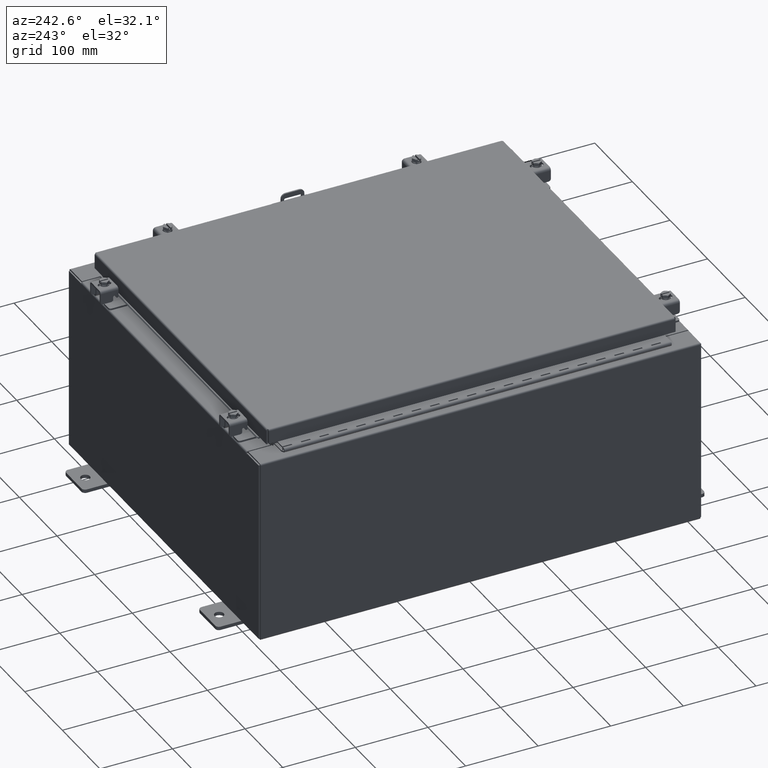
[diagram: clean part render]
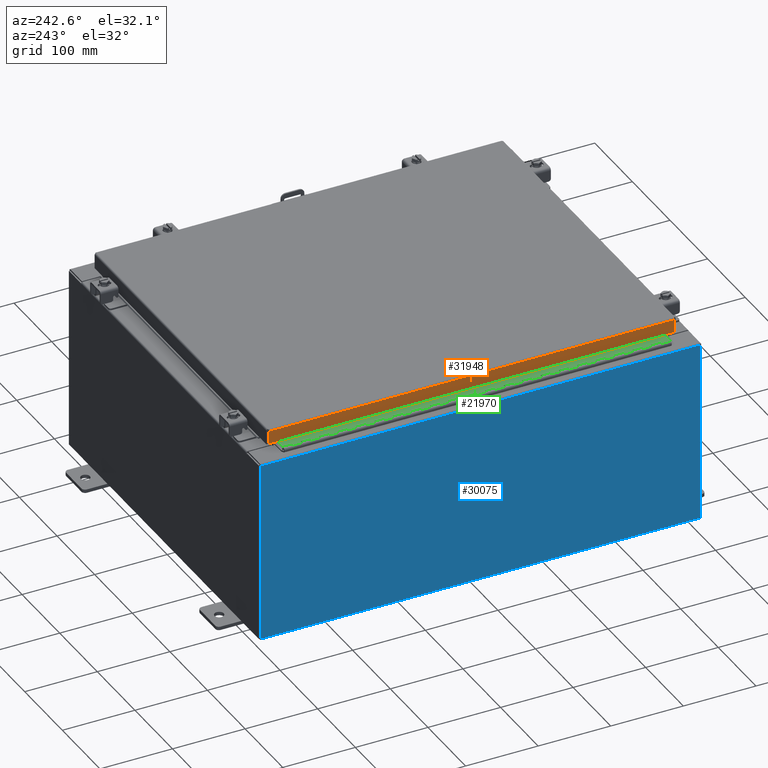
[diagram: same view with three faces highlighted in distinct colors, each labeled with its STEP entity id]
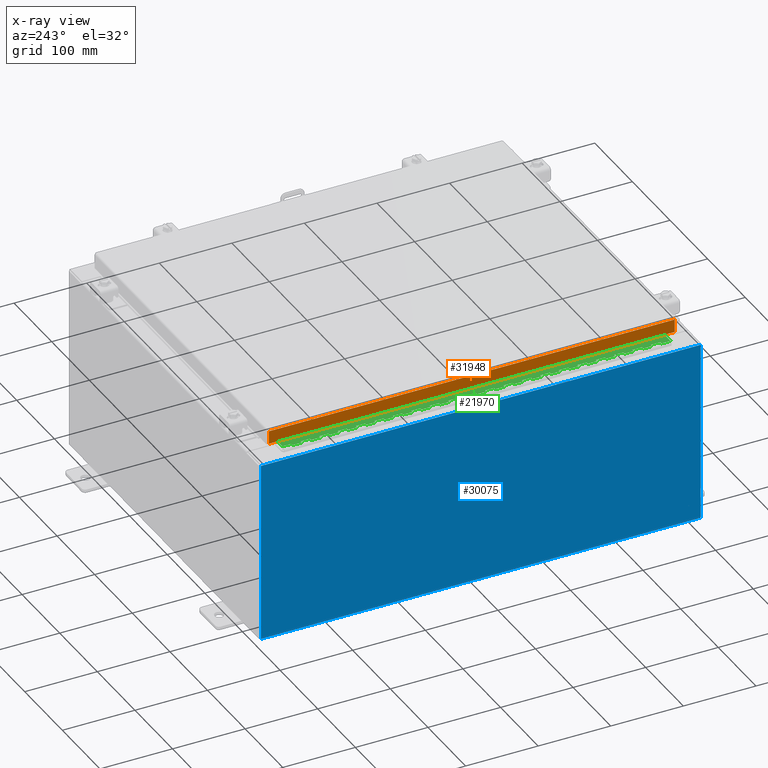
[diagram: x-ray of the same camera — body ghosted, the three highlighted faces saturated]
A machine part, auxiliary view with three faces highlighted in distinct colors.
The next image is the same camera in x-ray (body ghosted, the three faces saturated) — at least one of them is partly hidden behind the body in this view.
Their STEP definitions:

[orange] entity #31948 — the highlighted planar face has unit normal (1, 0, -0).
#1418 = DIRECTION ( 'NONE',  ( 4.379057701015054300E-047, 1.000000000000000000, 1.231227687788112300E-016 ) ) ;
#2693 = ORIENTED_EDGE ( 'NONE', *, *, #24696, .F. ) ;
#2736 = ORIENTED_EDGE ( 'NONE', *, *, #17709, .F. ) ;
#3068 = PLANE ( 'NONE',  #5812 ) ;
#3541 = DIRECTION ( 'NONE',  ( 3.735695558659274900E-031, -1.000000000000000000, -1.101212895818006000E-045 ) ) ;
#3769 = CARTESIAN_POINT ( 'NONE',  ( -9.077999999999999400, -11.00515786437626900, -0.08770000000000007000 ) ) ;
#3939 = CARTESIAN_POINT ( 'NONE',  ( -9.078000000000001200, 11.00515786437627100, -0.7949999999999969300 ) ) ;
#4162 = LINE ( 'NONE', #13985, #11573 ) ;
#4385 = VERTEX_POINT ( 'NONE', #6478 ) ;
#4959 = EDGE_CURVE ( 'NONE', #4385, #28904, #24697, .T. ) ;
#5812 = AXIS2_PLACEMENT_3D ( 'NONE', #7955, #25593, #10576 ) ;
#6478 = CARTESIAN_POINT ( 'NONE',  ( -9.077999999999999400, 11.00515786437626900, -0.08770000000000004200 ) ) ;
#7122 = CARTESIAN_POINT ( 'NONE',  ( -9.078000000000001200, -11.00515786437626700, -0.7949999999999996000 ) ) ;
#7955 = CARTESIAN_POINT ( 'NONE',  ( -9.077999999999999400, -3.391264428150889200E-030, 2.780457718396847000E-014 ) ) ;
#9113 = VECTOR ( 'NONE', #3541, 39.37007874015748100 ) ;
#10418 = CARTESIAN_POINT ( 'NONE',  ( -9.077999999999999400, -11.00515786437627100, -0.07469999999999976700 ) ) ;
#10576 = DIRECTION ( 'NONE',  ( -3.034122441942816500E-015, 0.0000000000000000000, -1.000000000000000000 ) ) ;
#11573 = VECTOR ( 'NONE', #1418, 39.37007874015748100 ) ;
#11752 = LINE ( 'NONE', #10418, #30995 ) ;
#13985 = CARTESIAN_POINT ( 'NONE',  ( -9.078000000000001200, -11.09400000000000100, -0.7949999999999997100 ) ) ;
#15602 = EDGE_CURVE ( 'NONE', #4385, #27986, #16563, .T. ) ;
#16526 = FACE_OUTER_BOUND ( 'NONE', #28698, .T. ) ;
#16563 = LINE ( 'NONE', #23530, #9113 ) ;
#17709 = EDGE_CURVE ( 'NONE', #27986, #30380, #11752, .T. ) ;
#18055 = VECTOR ( 'NONE', #31340, 39.37007874015748100 ) ;
#23530 = CARTESIAN_POINT ( 'NONE',  ( -9.077999999999999400, -11.09400000000000100, -0.08770000000000004200 ) ) ;
#23738 = CARTESIAN_POINT ( 'NONE',  ( -9.077999999999999400, 11.00515786437626700, 1.046531838129534400E-013 ) ) ;
#24696 = EDGE_CURVE ( 'NONE', #30380, #28904, #4162, .T. ) ;
#24697 = LINE ( 'NONE', #23738, #18055 ) ;
#25106 = ORIENTED_EDGE ( 'NONE', *, *, #4959, .T. ) ;
#25446 = DIRECTION ( 'NONE',  ( -3.034122441942816500E-015, 6.982962677686265900E-015, -1.000000000000000000 ) ) ;
#25593 = DIRECTION ( 'NONE',  ( 1.000000000000000000, 3.735695558659274400E-031, -3.034122441942816500E-015 ) ) ;
#27986 = VERTEX_POINT ( 'NONE', #3769 ) ;
#28698 = EDGE_LOOP ( 'NONE', ( #31347, #25106, #2693, #2736 ) ) ;
#28904 = VERTEX_POINT ( 'NONE', #3939 ) ;
#30380 = VERTEX_POINT ( 'NONE', #7122 ) ;
#30995 = VECTOR ( 'NONE', #25446, 39.37007874015748100 ) ;
#31340 = DIRECTION ( 'NONE',  ( -3.034122441942816500E-015, 6.982962677686265900E-015, -1.000000000000000000 ) ) ;
#31347 = ORIENTED_EDGE ( 'NONE', *, *, #15602, .F. ) ;
#31948 = ADVANCED_FACE ( 'NONE', ( #16526 ), #3068, .F. ) ;

[blue] entity #30075 — the highlighted planar face has unit normal (1, 0, 0).
#1237 = ORIENTED_EDGE ( 'NONE', *, *, #17410, .T. ) ;
#1812 = CARTESIAN_POINT ( 'NONE',  ( -10.00000000000000000, 11.92530000000000000, -3.549164226462045900E-014 ) ) ;
#2259 = VECTOR ( 'NONE', #9923, 39.37007874015748100 ) ;
#2975 = LINE ( 'NONE', #11229, #15464 ) ;
#3542 = DIRECTION ( 'NONE',  ( 3.523082860860887800E-015, 0.0000000000000000000, -1.000000000000000000 ) ) ;
#5271 = ORIENTED_EDGE ( 'NONE', *, *, #31865, .T. ) ;
#6415 = CARTESIAN_POINT ( 'NONE',  ( -10.00000000000003600, 11.92530000000000000, 9.837599999999998300 ) ) ;
#7066 = EDGE_CURVE ( 'NONE', #8749, #16160, #8102, .T. ) ;
#7249 = ORIENTED_EDGE ( 'NONE', *, *, #25765, .T. ) ;
#8102 = LINE ( 'NONE', #24953, #2259 ) ;
#8473 = AXIS2_PLACEMENT_3D ( 'NONE', #15978, #18513, #3542 ) ;
#8749 = VERTEX_POINT ( 'NONE', #17218 ) ;
#8815 = CARTESIAN_POINT ( 'NONE',  ( -10.00000000000000000, 11.92530000000000000, 0.01299999999999984300 ) ) ;
#9923 = DIRECTION ( 'NONE',  ( -0.0000000000000000000, 1.000000000000000000, -0.0000000000000000000 ) ) ;
#10156 = CARTESIAN_POINT ( 'NONE',  ( -10.00000000000003600, -11.92530000000000000, 9.837599999999998300 ) ) ;
#11119 = VERTEX_POINT ( 'NONE', #21975 ) ;
#11229 = CARTESIAN_POINT ( 'NONE',  ( -10.00000000000000000, -11.92530000000000000, -3.549164226462045900E-014 ) ) ;
#11669 = DIRECTION ( 'NONE',  ( -3.523082860860888200E-015, 0.0000000000000000000, 1.000000000000000000 ) ) ;
#11979 = ORIENTED_EDGE ( 'NONE', *, *, #7066, .F. ) ;
#12668 = DIRECTION ( 'NONE',  ( 0.0000000000000000000, 1.000000000000000000, 0.0000000000000000000 ) ) ;
#12933 = VECTOR ( 'NONE', #24248, 39.37007874015748100 ) ;
#13791 = LINE ( 'NONE', #10156, #25568 ) ;
#14018 = EDGE_LOOP ( 'NONE', ( #5271, #1237, #11979, #7249 ) ) ;
#15464 = VECTOR ( 'NONE', #11669, 39.37007874015748100 ) ;
#15978 = CARTESIAN_POINT ( 'NONE',  ( -10.00000000000000000, 0.0000000000000000000, -3.549164226462045900E-014 ) ) ;
#16160 = VERTEX_POINT ( 'NONE', #8815 ) ;
#17218 = CARTESIAN_POINT ( 'NONE',  ( -10.00000000000000000, -11.92529999999999800, 0.01299999999999984700 ) ) ;
#17410 = EDGE_CURVE ( 'NONE', #21114, #16160, #26271, .T. ) ;
#18513 = DIRECTION ( 'NONE',  ( 1.000000000000000000, 0.0000000000000000000, 3.523082860860887800E-015 ) ) ;
#21114 = VERTEX_POINT ( 'NONE', #6415 ) ;
#21975 = CARTESIAN_POINT ( 'NONE',  ( -10.00000000000003600, -11.92529999999999500, 9.837599999999998300 ) ) ;
#22537 = FACE_OUTER_BOUND ( 'NONE', #14018, .T. ) ;
#24248 = DIRECTION ( 'NONE',  ( 3.523082860860888200E-015, 0.0000000000000000000, -1.000000000000000000 ) ) ;
#24953 = CARTESIAN_POINT ( 'NONE',  ( -10.00000000000000000, 11.92530000000000000, 0.01299999999999984700 ) ) ;
#25568 = VECTOR ( 'NONE', #12668, 39.37007874015748100 ) ;
#25765 = EDGE_CURVE ( 'NONE', #8749, #11119, #2975, .T. ) ;
#26271 = LINE ( 'NONE', #1812, #12933 ) ;
#30075 = ADVANCED_FACE ( 'NONE', ( #22537 ), #31034, .F. ) ;
#31034 = PLANE ( 'NONE',  #8473 ) ;
#31865 = EDGE_CURVE ( 'NONE', #11119, #21114, #13791, .T. ) ;

[green] entity #21970 — the highlighted planar face has unit normal (-0, -0, 1).
#18 = VECTOR ( 'NONE', #12696, 39.37007874015748100 ) ;
#42 = CARTESIAN_POINT ( 'NONE',  ( -0.6869999999999973900, 0.8004999999999995500, -10.00000000000000000 ) ) ;
#98 = LINE ( 'NONE', #28901, #1669 ) ;
#252 = VERTEX_POINT ( 'NONE', #6215 ) ;
#268 = VERTEX_POINT ( 'NONE', #1294 ) ;
#328 = VECTOR ( 'NONE', #31581, 39.37007874015748100 ) ;
#331 = CARTESIAN_POINT ( 'NONE',  ( -0.6869999999999982800, 0.5504999999999997700, -2.500000000000000000 ) ) ;
#345 = VECTOR ( 'NONE', #1203, 39.37007874015748100 ) ;
#383 = EDGE_CURVE ( 'NONE', #5269, #10296, #10696, .T. ) ;
#401 = CARTESIAN_POINT ( 'NONE',  ( -0.6869999999999982800, 0.5504999999999997700, -17.50000000000000000 ) ) ;
#447 = CARTESIAN_POINT ( 'NONE',  ( -0.6869999999999982800, 0.5504999999999997700, -17.00000000000000000 ) ) ;
#464 = LINE ( 'NONE', #9889, #12200 ) ;
#521 = EDGE_CURVE ( 'NONE', #10962, #14080, #19766, .T. ) ;
#560 = VECTOR ( 'NONE', #23667, 39.37007874015748100 ) ;
#567 = EDGE_CURVE ( 'NONE', #32378, #10759, #31543, .T. ) ;
#584 = VERTEX_POINT ( 'NONE', #14953 ) ;
#721 = EDGE_CURVE ( 'NONE', #13237, #15537, #21677, .T. ) ;
#784 = CARTESIAN_POINT ( 'NONE',  ( -0.6869999999999978300, 0.6754999999999996600, -10.00000000000000000 ) ) ;
#814 = DIRECTION ( 'NONE',  ( 0.0000000000000000000, -0.0000000000000000000, -1.000000000000000000 ) ) ;
#895 = LINE ( 'NONE', #32430, #6776 ) ;
#1031 = VERTEX_POINT ( 'NONE', #16798 ) ;
#1037 = VECTOR ( 'NONE', #12600, 39.37007874015748100 ) ;
#1053 = EDGE_CURVE ( 'NONE', #29542, #16399, #24824, .T. ) ;
#1081 = LINE ( 'NONE', #24680, #13599 ) ;
#1138 = DIRECTION ( 'NONE',  ( 0.0000000000000000000, 0.0000000000000000000, 1.000000000000000000 ) ) ;
#1157 = VERTEX_POINT ( 'NONE', #17341 ) ;
#1203 = DIRECTION ( 'NONE',  ( -3.389037039080723100E-015, -1.000000000000000000, 0.0000000000000000000 ) ) ;
#1235 = CARTESIAN_POINT ( 'NONE',  ( -0.6869999999999973900, 0.8004999999999995500, -17.99999999999999600 ) ) ;
#1292 = LINE ( 'NONE', #24957, #20471 ) ;
#1294 = CARTESIAN_POINT ( 'NONE',  ( -0.6869999999999998300, 0.07549999999999991400, 0.0000000000000000000 ) ) ;
#1312 = CARTESIAN_POINT ( 'NONE',  ( -0.6869999999999982800, 0.5504999999999997700, -5.000000000000000000 ) ) ;
#1320 = VECTOR ( 'NONE', #20789, 39.37007874015748100 ) ;
#1321 = LINE ( 'NONE', #26386, #21258 ) ;
#1379 = CARTESIAN_POINT ( 'NONE',  ( -0.6869999999999982800, 0.5504999999999997700, -19.50000000000000000 ) ) ;
#1482 = DIRECTION ( 'NONE',  ( 0.0000000000000000000, -0.0000000000000000000, -1.000000000000000000 ) ) ;
#1527 = VECTOR ( 'NONE', #32099, 39.37007874015748100 ) ;
#1564 = CARTESIAN_POINT ( 'NONE',  ( -0.6869999999999973900, 0.8004999999999995500, -18.50000000000000000 ) ) ;
#1669 = VECTOR ( 'NONE', #23827, 39.37007874015748100 ) ;
#1730 = CARTESIAN_POINT ( 'NONE',  ( -0.6869999999999982800, 0.5504999999999997700, -12.49999999999999800 ) ) ;
#1738 = ORIENTED_EDGE ( 'NONE', *, *, #1053, .F. ) ;
#1793 = ORIENTED_EDGE ( 'NONE', *, *, #32393, .F. ) ;
#1813 = VECTOR ( 'NONE', #23389, 39.37007874015748100 ) ;
#1822 = EDGE_CURVE ( 'NONE', #20582, #4193, #13516, .T. ) ;
#1824 = ORIENTED_EDGE ( 'NONE', *, *, #521, .T. ) ;
#1850 = DIRECTION ( 'NONE',  ( -3.389037039080723100E-015, -1.000000000000000000, 0.0000000000000000000 ) ) ;
#2050 = CARTESIAN_POINT ( 'NONE',  ( -0.6869999999999982800, 0.5504999999999997700, -7.499999999999999100 ) ) ;
#2096 = CARTESIAN_POINT ( 'NONE',  ( -0.6869999999999982800, 0.5504999999999997700, -2.500000000000000000 ) ) ;
#2130 = EDGE_CURVE ( 'NONE', #268, #15466, #12325, .T. ) ;
#2183 = CARTESIAN_POINT ( 'NONE',  ( -0.6869999999999982800, 0.5504999999999997700, -6.499999999999999100 ) ) ;
#2269 = VERTEX_POINT ( 'NONE', #19561 ) ;
#2321 = LINE ( 'NONE', #4826, #8159 ) ;
#2392 = VERTEX_POINT ( 'NONE', #23047 ) ;
#2465 = VECTOR ( 'NONE', #6409, 39.37007874015748100 ) ;
#2469 = VECTOR ( 'NONE', #12982, 39.37007874015748100 ) ;
#2485 = CARTESIAN_POINT ( 'NONE',  ( -0.6869999999999978300, 0.6754999999999996600, -12.99999999999999800 ) ) ;
#2643 = LINE ( 'NONE', #27617, #1037 ) ;
#2648 = LINE ( 'NONE', #3234, #27706 ) ;
#2844 = CARTESIAN_POINT ( 'NONE',  ( -0.6869999999999978300, 0.6754999999999996600, -21.00000000000000000 ) ) ;
#2860 = DIRECTION ( 'NONE',  ( -3.389037039080723100E-015, -1.000000000000000000, 0.0000000000000000000 ) ) ;
#2986 = EDGE_CURVE ( 'NONE', #4193, #14555, #7964, .T. ) ;
#3083 = CARTESIAN_POINT ( 'NONE',  ( -0.6869999999999973900, 0.8004999999999995500, -16.50000000000000000 ) ) ;
#3152 = ORIENTED_EDGE ( 'NONE', *, *, #6707, .F. ) ;
#3156 = FACE_OUTER_BOUND ( 'NONE', #4631, .T. ) ;
#3234 = CARTESIAN_POINT ( 'NONE',  ( -0.6869999999999978300, 0.6754999999999996600, -21.00000000000000000 ) ) ;
#3241 = DIRECTION ( 'NONE',  ( 3.389037039080723100E-015, 1.000000000000000000, -0.0000000000000000000 ) ) ;
#3254 = CARTESIAN_POINT ( 'NONE',  ( -0.6869999999999973900, 0.8004999999999995500, -6.000000000000000900 ) ) ;
#3312 = CARTESIAN_POINT ( 'NONE',  ( -0.6869999999999973900, 0.8004999999999995500, -11.99999999999999800 ) ) ;
#3348 = VECTOR ( 'NONE', #12905, 39.37007874015748100 ) ;
#3375 = VECTOR ( 'NONE', #7550, 39.37007874015748100 ) ;
#3403 = CARTESIAN_POINT ( 'NONE',  ( -0.6869999999999973900, 0.8004999999999995500, -2.000000000000000000 ) ) ;
#3488 = VECTOR ( 'NONE', #16194, 39.37007874015748100 ) ;
#3655 = EDGE_CURVE ( 'NONE', #16208, #21382, #9084, .T. ) ;
#3707 = EDGE_CURVE ( 'NONE', #23198, #3985, #20824, .T. ) ;
#3749 = EDGE_CURVE ( 'NONE', #8103, #14080, #21606, .T. ) ;
#3794 = VECTOR ( 'NONE', #4635, 39.37007874015748100 ) ;
#3825 = LINE ( 'NONE', #13143, #16318 ) ;
#3901 = EDGE_CURVE ( 'NONE', #13753, #20023, #22797, .T. ) ;
#3932 = CARTESIAN_POINT ( 'NONE',  ( -0.6869999999999978300, 0.6754999999999996600, -21.00000000000000000 ) ) ;
#3971 = VERTEX_POINT ( 'NONE', #19885 ) ;
#3985 = VERTEX_POINT ( 'NONE', #29883 ) ;
#3996 = EDGE_CURVE ( 'NONE', #24018, #19023, #464, .T. ) ;
#4003 = CARTESIAN_POINT ( 'NONE',  ( -0.6869999999999982800, 0.5504999999999997700, -12.99999999999999800 ) ) ;
#4032 = DIRECTION ( 'NONE',  ( 3.389037039080723100E-015, 1.000000000000000000, -0.0000000000000000000 ) ) ;
#4078 = VECTOR ( 'NONE', #9143, 39.37007874015748100 ) ;
#4136 = LINE ( 'NONE', #7503, #30791 ) ;
#4142 = CARTESIAN_POINT ( 'NONE',  ( -0.6869999999999978300, 0.6754999999999996600, -12.49999999999999800 ) ) ;
#4160 = ORIENTED_EDGE ( 'NONE', *, *, #22331, .F. ) ;
#4173 = DIRECTION ( 'NONE',  ( 0.0000000000000000000, 0.0000000000000000000, 1.000000000000000000 ) ) ;
#4193 = VERTEX_POINT ( 'NONE', #20722 ) ;
#4199 = ORIENTED_EDGE ( 'NONE', *, *, #11536, .F. ) ;
#4260 = CARTESIAN_POINT ( 'NONE',  ( -0.6869999999999973900, 0.8004999999999995500, -13.50000000000000000 ) ) ;
#4293 = EDGE_CURVE ( 'NONE', #4579, #20143, #11807, .T. ) ;
#4346 = EDGE_CURVE ( 'NONE', #5031, #10296, #16089, .T. ) ;
#4369 = VECTOR ( 'NONE', #25604, 39.37007874015748100 ) ;
#4394 = CARTESIAN_POINT ( 'NONE',  ( -0.6869999999999973900, 0.8004999999999995500, -20.00000000000000000 ) ) ;
#4447 = DIRECTION ( 'NONE',  ( 3.389037039080723100E-015, 1.000000000000000000, -0.0000000000000000000 ) ) ;
#4456 = DIRECTION ( 'NONE',  ( 3.389037039080723100E-015, 1.000000000000000000, -0.0000000000000000000 ) ) ;
#4477 = CARTESIAN_POINT ( 'NONE',  ( -0.6869999999999978300, 0.6754999999999996600, -11.99999999999999800 ) ) ;
#4499 = VECTOR ( 'NONE', #31364, 39.37007874015748100 ) ;
#4579 = VERTEX_POINT ( 'NONE', #22232 ) ;
#4631 = EDGE_LOOP ( 'NONE', ( #9481, #27606, #12802, #19138, #15125, #29268, #18420, #15177, #18144, #12545, #30759, #24898, #22175, #11427, #29151, #6518, #6991, #4199, #23728, #6245, #16554, #31081, #7069, #29811, #18612, #15890, #25146, #19015, #1824, #13212, #1793, #30498, #20713, #1738, #6350, #26626, #25471, #32334, #30444, #32218, #30335, #21347, #7741, #11569, #30867, #26975, #15213, #25934, #21097, #25988, #6041, #4160, #6693, #30035, #15859, #27309, #24465, #24544, #14822, #31339, #26309, #8170, #22065, #26403, #11163, #25497, #30002, #23687, #15134, #5254, #4962, #28536, #19024, #7500, #7786, #3152, #26765, #31560, #6670, #22525, #17438, #15501, #5614, #26083, #14790, #12765 ) ) ;
#4635 = DIRECTION ( 'NONE',  ( 0.0000000000000000000, -0.0000000000000000000, -1.000000000000000000 ) ) ;
#4785 = DIRECTION ( 'NONE',  ( 0.0000000000000000000, 0.0000000000000000000, 1.000000000000000000 ) ) ;
#4815 = DIRECTION ( 'NONE',  ( 0.0000000000000000000, 0.0000000000000000000, 1.000000000000000000 ) ) ;
#4826 = CARTESIAN_POINT ( 'NONE',  ( -0.6869999999999973900, 0.8004999999999995500, -3.500000000000000000 ) ) ;
#4873 = EDGE_CURVE ( 'NONE', #16208, #21356, #27044, .T. ) ;
#4900 = DIRECTION ( 'NONE',  ( -3.389037039080723100E-015, -1.000000000000000000, 0.0000000000000000000 ) ) ;
#4918 = VECTOR ( 'NONE', #26575, 39.37007874015748100 ) ;
#4962 = ORIENTED_EDGE ( 'NONE', *, *, #21642, .F. ) ;
#4968 = VERTEX_POINT ( 'NONE', #1312 ) ;
#5022 = LINE ( 'NONE', #24783, #28503 ) ;
#5031 = VERTEX_POINT ( 'NONE', #16500 ) ;
#5057 = VERTEX_POINT ( 'NONE', #21527 ) ;
#5254 = ORIENTED_EDGE ( 'NONE', *, *, #19749, .F. ) ;
#5268 = LINE ( 'NONE', #16301, #4499 ) ;
#5269 = VERTEX_POINT ( 'NONE', #5487 ) ;
#5340 = CARTESIAN_POINT ( 'NONE',  ( -0.6869999999999978300, 0.6754999999999996600, -17.00000000000000000 ) ) ;
#5415 = CARTESIAN_POINT ( 'NONE',  ( -0.6869999999999978300, 0.6754999999999996600, -21.00000000000000000 ) ) ;
#5434 = VECTOR ( 'NONE', #25918, 39.37007874015748100 ) ;
#5487 = CARTESIAN_POINT ( 'NONE',  ( -0.6869999999999978300, 0.6754999999999996600, -11.50000000000000000 ) ) ;
#5504 = VECTOR ( 'NONE', #17579, 39.37007874015748100 ) ;
#5548 = LINE ( 'NONE', #17269, #31427 ) ;
#5614 = ORIENTED_EDGE ( 'NONE', *, *, #13165, .F. ) ;
#5631 = VECTOR ( 'NONE', #14451, 39.37007874015748100 ) ;
#5644 = LINE ( 'NONE', #4260, #30749 ) ;
#5840 = VECTOR ( 'NONE', #2860, 39.37007874015748100 ) ;
#5863 = DIRECTION ( 'NONE',  ( 0.0000000000000000000, -0.0000000000000000000, -1.000000000000000000 ) ) ;
#5883 = LINE ( 'NONE', #12722, #25081 ) ;
#6041 = ORIENTED_EDGE ( 'NONE', *, *, #16621, .F. ) ;
#6205 = VECTOR ( 'NONE', #28790, 39.37007874015748100 ) ;
#6215 = CARTESIAN_POINT ( 'NONE',  ( -0.6869999999999982800, 0.5504999999999997700, -4.500000000000000000 ) ) ;
#6221 = LINE ( 'NONE', #13423, #32121 ) ;
#6234 = EDGE_CURVE ( 'NONE', #24683, #26417, #15976, .T. ) ;
#6245 = ORIENTED_EDGE ( 'NONE', *, *, #28679, .F. ) ;
#6323 = EDGE_CURVE ( 'NONE', #23422, #11334, #26956, .T. ) ;
#6350 = ORIENTED_EDGE ( 'NONE', *, *, #16206, .F. ) ;
#6409 = DIRECTION ( 'NONE',  ( 0.0000000000000000000, 0.0000000000000000000, 1.000000000000000000 ) ) ;
#6518 = ORIENTED_EDGE ( 'NONE', *, *, #3655, .F. ) ;
#6670 = ORIENTED_EDGE ( 'NONE', *, *, #25950, .F. ) ;
#6673 = CARTESIAN_POINT ( 'NONE',  ( -0.6869999999999982800, 0.5504999999999997700, -7.000000000000000000 ) ) ;
#6693 = ORIENTED_EDGE ( 'NONE', *, *, #23715, .T. ) ;
#6707 = EDGE_CURVE ( 'NONE', #13978, #22633, #30903, .T. ) ;
#6739 = DIRECTION ( 'NONE',  ( -3.389037039080723100E-015, -1.000000000000000000, 0.0000000000000000000 ) ) ;
#6752 = CARTESIAN_POINT ( 'NONE',  ( -0.6869999999999978300, 0.6754999999999996600, -17.50000000000000000 ) ) ;
#6776 = VECTOR ( 'NONE', #24846, 39.37007874015748100 ) ;
#6895 = CARTESIAN_POINT ( 'NONE',  ( -0.6869999999999978300, 0.6754999999999996600, -0.5000000000000000000 ) ) ;
#6929 = CARTESIAN_POINT ( 'NONE',  ( -0.6869999999999982800, 0.5504999999999997700, -4.000000000000000000 ) ) ;
#6977 = CARTESIAN_POINT ( 'NONE',  ( -0.6869999999999982800, 0.5504999999999997700, -5.500000000000000000 ) ) ;
#6991 = ORIENTED_EDGE ( 'NONE', *, *, #4873, .T. ) ;
#7069 = ORIENTED_EDGE ( 'NONE', *, *, #25373, .F. ) ;
#7117 = DIRECTION ( 'NONE',  ( 0.0000000000000000000, 0.0000000000000000000, 1.000000000000000000 ) ) ;
#7182 = CARTESIAN_POINT ( 'NONE',  ( -0.6869999999999982800, 0.5504999999999997700, -13.50000000000000000 ) ) ;
#7378 = VECTOR ( 'NONE', #21775, 39.37007874015748100 ) ;
#7382 = CARTESIAN_POINT ( 'NONE',  ( -0.6869999999999982800, 0.5504999999999997700, -1.499999999999999800 ) ) ;
#7464 = LINE ( 'NONE', #17655, #18 ) ;
#7476 = CARTESIAN_POINT ( 'NONE',  ( -0.6869999999999978300, 0.6754999999999996600, -13.50000000000000000 ) ) ;
#7500 = ORIENTED_EDGE ( 'NONE', *, *, #23770, .F. ) ;
#7503 = CARTESIAN_POINT ( 'NONE',  ( -0.6869999999999982800, 0.5504999999999997700, -1.499999999999999800 ) ) ;
#7550 = DIRECTION ( 'NONE',  ( 0.0000000000000000000, -0.0000000000000000000, -1.000000000000000000 ) ) ;
#7589 = CARTESIAN_POINT ( 'NONE',  ( -0.6869999999999978300, 0.6754999999999996600, -16.00000000000000000 ) ) ;
#7634 = CARTESIAN_POINT ( 'NONE',  ( -0.6869999999999982800, 0.5504999999999997700, -19.00000000000000000 ) ) ;
#7741 = ORIENTED_EDGE ( 'NONE', *, *, #28729, .F. ) ;
#7786 = ORIENTED_EDGE ( 'NONE', *, *, #20654, .F. ) ;
#7936 = CARTESIAN_POINT ( 'NONE',  ( -0.6869999999999978300, 0.6754999999999996600, -2.500000000000000000 ) ) ;
#7939 = EDGE_CURVE ( 'NONE', #28571, #16582, #2648, .T. ) ;
#7964 = LINE ( 'NONE', #3312, #1320 ) ;
#8088 = VERTEX_POINT ( 'NONE', #31265 ) ;
#8103 = VERTEX_POINT ( 'NONE', #18857 ) ;
#8139 = LINE ( 'NONE', #19283, #7378 ) ;
#8140 = EDGE_CURVE ( 'NONE', #13978, #23674, #10198, .T. ) ;
#8159 = VECTOR ( 'NONE', #9725, 39.37007874015748100 ) ;
#8170 = ORIENTED_EDGE ( 'NONE', *, *, #21499, .F. ) ;
#8238 = VECTOR ( 'NONE', #7117, 39.37007874015748100 ) ;
#8245 = DIRECTION ( 'NONE',  ( 3.389037039080723100E-015, 1.000000000000000000, -0.0000000000000000000 ) ) ;
#8251 = DIRECTION ( 'NONE',  ( 0.0000000000000000000, 0.0000000000000000000, 1.000000000000000000 ) ) ;
#8296 = LINE ( 'NONE', #30769, #9087 ) ;
#8346 = CARTESIAN_POINT ( 'NONE',  ( -0.6869999999999982800, 0.5504999999999997700, -8.500000000000000000 ) ) ;
#8355 = CARTESIAN_POINT ( 'NONE',  ( -0.6869999999999978300, 0.6754999999999996600, -18.50000000000000000 ) ) ;
#8468 = EDGE_CURVE ( 'NONE', #11673, #30115, #7464, .T. ) ;
#8847 = EDGE_CURVE ( 'NONE', #24144, #20143, #28989, .T. ) ;
#9084 = LINE ( 'NONE', #31195, #28306 ) ;
#9087 = VECTOR ( 'NONE', #15712, 39.37007874015748100 ) ;
#9143 = DIRECTION ( 'NONE',  ( 0.0000000000000000000, 0.0000000000000000000, 1.000000000000000000 ) ) ;
#9175 = EDGE_CURVE ( 'NONE', #31030, #20153, #20332, .T. ) ;
#9202 = LINE ( 'NONE', #19152, #22533 ) ;
#9225 = LINE ( 'NONE', #25830, #1813 ) ;
#9282 = EDGE_CURVE ( 'NONE', #19305, #16582, #24644, .T. ) ;
#9324 = LINE ( 'NONE', #30883, #12061 ) ;
#9328 = EDGE_CURVE ( 'NONE', #30944, #13224, #23053, .T. ) ;
#9336 = CARTESIAN_POINT ( 'NONE',  ( -0.6869999999999973900, 0.8004999999999995500, -12.99999999999999800 ) ) ;
#9384 = EDGE_CURVE ( 'NONE', #23198, #2392, #2321, .T. ) ;
#9481 = ORIENTED_EDGE ( 'NONE', *, *, #18393, .F. ) ;
#9687 = CARTESIAN_POINT ( 'NONE',  ( -0.6869999999999982800, 0.5504999999999997700, -14.49999999999999800 ) ) ;
#9714 = CARTESIAN_POINT ( 'NONE',  ( -0.6869999999999978300, 0.6754999999999996600, -21.00000000000000000 ) ) ;
#9725 = DIRECTION ( 'NONE',  ( -3.389037039080723100E-015, -1.000000000000000000, 0.0000000000000000000 ) ) ;
#9741 = EDGE_CURVE ( 'NONE', #28571, #12832, #25405, .T. ) ;
#9889 = CARTESIAN_POINT ( 'NONE',  ( -0.6869999999999973900, 0.8004999999999995500, -19.50000000000000000 ) ) ;
#9981 = DIRECTION ( 'NONE',  ( 0.0000000000000000000, -0.0000000000000000000, -1.000000000000000000 ) ) ;
#9995 = CARTESIAN_POINT ( 'NONE',  ( -0.6869999999999982800, 0.5504999999999997700, -20.00000000000000000 ) ) ;
#10084 = CARTESIAN_POINT ( 'NONE',  ( -0.6869999999999973900, 0.8004999999999995500, -16.00000000000000000 ) ) ;
#10094 = VECTOR ( 'NONE', #17548, 39.37007874015748100 ) ;
#10198 = LINE ( 'NONE', #21457, #23511 ) ;
#10202 = DIRECTION ( 'NONE',  ( 3.369016658928398200E-015, 1.000000000000000000, 0.0000000000000000000 ) ) ;
#10259 = CARTESIAN_POINT ( 'NONE',  ( -0.6869999999999978300, 0.6754999999999996600, -8.000000000000000000 ) ) ;
#10275 = EDGE_CURVE ( 'NONE', #27837, #17014, #3825, .T. ) ;
#10296 = VERTEX_POINT ( 'NONE', #18434 ) ;
#10374 = CARTESIAN_POINT ( 'NONE',  ( -0.6869999999999973900, 0.8004999999999995500, -17.00000000000000000 ) ) ;
#10394 = VERTEX_POINT ( 'NONE', #13789 ) ;
#10422 = LINE ( 'NONE', #2096, #3794 ) ;
#10453 = LINE ( 'NONE', #5415, #22204 ) ;
#10544 = VECTOR ( 'NONE', #30179, 39.37007874015748100 ) ;
#10557 = VECTOR ( 'NONE', #9981, 39.37007874015748100 ) ;
#10599 = VERTEX_POINT ( 'NONE', #7476 ) ;
#10627 = VECTOR ( 'NONE', #17262, 39.37007874015748100 ) ;
#10632 = EDGE_CURVE ( 'NONE', #12832, #17425, #2643, .T. ) ;
#10696 = LINE ( 'NONE', #24279, #4078 ) ;
#10700 = CARTESIAN_POINT ( 'NONE',  ( -0.6869999999999973900, 0.8004999999999995500, -9.500000000000000000 ) ) ;
#10745 = DIRECTION ( 'NONE',  ( -3.389037039080723100E-015, -1.000000000000000000, 0.0000000000000000000 ) ) ;
#10759 = VERTEX_POINT ( 'NONE', #447 ) ;
#10812 = CARTESIAN_POINT ( 'NONE',  ( -0.6869999999999982800, 0.5504999999999997700, -10.50000000000000000 ) ) ;
#10881 = VERTEX_POINT ( 'NONE', #25951 ) ;
#10948 = DIRECTION ( 'NONE',  ( 0.0000000000000000000, 0.0000000000000000000, 1.000000000000000000 ) ) ;
#10962 = VERTEX_POINT ( 'NONE', #31234 ) ;
#10989 = LINE ( 'NONE', #3083, #4369 ) ;
#11163 = ORIENTED_EDGE ( 'NONE', *, *, #20226, .T. ) ;
#11315 = VECTOR ( 'NONE', #4456, 39.37007874015748100 ) ;
#11334 = VERTEX_POINT ( 'NONE', #22634 ) ;
#11427 = ORIENTED_EDGE ( 'NONE', *, *, #6234, .F. ) ;
#11445 = LINE ( 'NONE', #2844, #18898 ) ;
#11468 = DIRECTION ( 'NONE',  ( 0.0000000000000000000, -0.0000000000000000000, -1.000000000000000000 ) ) ;
#11536 = EDGE_CURVE ( 'NONE', #10759, #21356, #30797, .T. ) ;
#11569 = ORIENTED_EDGE ( 'NONE', *, *, #14670, .F. ) ;
#11663 = EDGE_CURVE ( 'NONE', #15668, #23674, #13484, .T. ) ;
#11673 = VERTEX_POINT ( 'NONE', #28466 ) ;
#11707 = LINE ( 'NONE', #17845, #5840 ) ;
#11807 = LINE ( 'NONE', #21138, #23539 ) ;
#11884 = EDGE_CURVE ( 'NONE', #32267, #13753, #26421, .T. ) ;
#11923 = CARTESIAN_POINT ( 'NONE',  ( -0.6869999999999982800, 0.5504999999999997700, -0.5000000000000000000 ) ) ;
#11970 = VERTEX_POINT ( 'NONE', #2183 ) ;
#12049 = LINE ( 'NONE', #23244, #19500 ) ;
#12061 = VECTOR ( 'NONE', #13295, 39.37007874015748100 ) ;
#12116 = CARTESIAN_POINT ( 'NONE',  ( -0.6869999999999982800, 0.5504999999999997700, -7.499999999999999100 ) ) ;
#12163 = CARTESIAN_POINT ( 'NONE',  ( -0.6870000000000022800, -0.6245000000000003900, -21.00000000000000000 ) ) ;
#12200 = VECTOR ( 'NONE', #4900, 39.37007874015748100 ) ;
#12325 = LINE ( 'NONE', #31640, #4918 ) ;
#12468 = EDGE_CURVE ( 'NONE', #584, #31591, #24821, .T. ) ;
#12514 = CARTESIAN_POINT ( 'NONE',  ( -0.6870000000000022800, -0.6245000000000003900, -21.00000000000000000 ) ) ;
#12545 = ORIENTED_EDGE ( 'NONE', *, *, #14994, .F. ) ;
#12600 = DIRECTION ( 'NONE',  ( 0.0000000000000000000, -0.0000000000000000000, -1.000000000000000000 ) ) ;
#12625 = VECTOR ( 'NONE', #24278, 39.37007874015748100 ) ;
#12680 = LINE ( 'NONE', #12163, #14240 ) ;
#12696 = DIRECTION ( 'NONE',  ( 0.0000000000000000000, 0.0000000000000000000, 1.000000000000000000 ) ) ;
#12722 = CARTESIAN_POINT ( 'NONE',  ( -0.6869999999999982800, 0.5504999999999997700, -18.50000000000000000 ) ) ;
#12765 = ORIENTED_EDGE ( 'NONE', *, *, #2130, .F. ) ;
#12802 = ORIENTED_EDGE ( 'NONE', *, *, #10632, .F. ) ;
#12832 = VERTEX_POINT ( 'NONE', #20697 ) ;
#12894 = EDGE_CURVE ( 'NONE', #3971, #15537, #20139, .T. ) ;
#12905 = DIRECTION ( 'NONE',  ( 3.389037039080723100E-015, 1.000000000000000000, -0.0000000000000000000 ) ) ;
#12982 = DIRECTION ( 'NONE',  ( 3.389037039080723100E-015, 1.000000000000000000, -0.0000000000000000000 ) ) ;
#13008 = EDGE_CURVE ( 'NONE', #32267, #28833, #5268, .T. ) ;
#13143 = CARTESIAN_POINT ( 'NONE',  ( -0.6869999999999973900, 0.8004999999999995500, -1.499999999999999800 ) ) ;
#13165 = EDGE_CURVE ( 'NONE', #8088, #584, #19736, .T. ) ;
#13201 = CARTESIAN_POINT ( 'NONE',  ( -0.6869999999999982800, 0.5504999999999997700, -4.500000000000000000 ) ) ;
#13212 = ORIENTED_EDGE ( 'NONE', *, *, #3749, .F. ) ;
#13224 = VERTEX_POINT ( 'NONE', #27141 ) ;
#13237 = VERTEX_POINT ( 'NONE', #32224 ) ;
#13295 = DIRECTION ( 'NONE',  ( -3.389037039080723100E-015, -1.000000000000000000, 0.0000000000000000000 ) ) ;
#13317 = DIRECTION ( 'NONE',  ( 0.0000000000000000000, -0.0000000000000000000, -1.000000000000000000 ) ) ;
#13358 = LINE ( 'NONE', #8346, #27501 ) ;
#13397 = CARTESIAN_POINT ( 'NONE',  ( -0.6869999999999973900, 0.8004999999999995500, -8.000000000000000000 ) ) ;
#13415 = LINE ( 'NONE', #22406, #25976 ) ;
#13423 = CARTESIAN_POINT ( 'NONE',  ( -0.6869999999999998300, 0.07549999999999991400, -21.00000000000000000 ) ) ;
#13463 = VECTOR ( 'NONE', #20893, 39.37007874015748100 ) ;
#13477 = VECTOR ( 'NONE', #30772, 39.37007874015748100 ) ;
#13484 = LINE ( 'NONE', #3403, #19380 ) ;
#13516 = LINE ( 'NONE', #20028, #3375 ) ;
#13577 = CARTESIAN_POINT ( 'NONE',  ( -0.6869999999999978300, 0.6754999999999996600, -8.500000000000000000 ) ) ;
#13599 = VECTOR ( 'NONE', #14695, 39.37007874015748100 ) ;
#13640 = LINE ( 'NONE', #31110, #345 ) ;
#13656 = VECTOR ( 'NONE', #11468, 39.37007874015748100 ) ;
#13671 = VECTOR ( 'NONE', #19061, 39.37007874015748100 ) ;
#13707 = VECTOR ( 'NONE', #10948, 39.37007874015748100 ) ;
#13753 = VERTEX_POINT ( 'NONE', #12116 ) ;
#13789 = CARTESIAN_POINT ( 'NONE',  ( -0.6869999999999982800, 0.5504999999999997700, -9.000000000000000000 ) ) ;
#13978 = VERTEX_POINT ( 'NONE', #7936 ) ;
#14010 = CARTESIAN_POINT ( 'NONE',  ( -0.6869999999999973900, 0.8004999999999995500, -8.500000000000000000 ) ) ;
#14024 = DIRECTION ( 'NONE',  ( 0.0000000000000000000, 0.0000000000000000000, 1.000000000000000000 ) ) ;
#14080 = VERTEX_POINT ( 'NONE', #15798 ) ;
#14240 = VECTOR ( 'NONE', #29743, 39.37007874015748100 ) ;
#14277 = VECTOR ( 'NONE', #814, 39.37007874015748100 ) ;
#14426 = VERTEX_POINT ( 'NONE', #18901 ) ;
#14451 = DIRECTION ( 'NONE',  ( 0.0000000000000000000, -0.0000000000000000000, -1.000000000000000000 ) ) ;
#14555 = VERTEX_POINT ( 'NONE', #4477 ) ;
#14585 = CARTESIAN_POINT ( 'NONE',  ( -0.6869999999999982800, 0.5504999999999997700, -8.000000000000000000 ) ) ;
#14616 = EDGE_CURVE ( 'NONE', #10599, #16399, #5548, .T. ) ;
#14670 = EDGE_CURVE ( 'NONE', #2269, #16510, #17305, .T. ) ;
#14695 = DIRECTION ( 'NONE',  ( 0.0000000000000000000, -0.0000000000000000000, -1.000000000000000000 ) ) ;
#14717 = CARTESIAN_POINT ( 'NONE',  ( -0.6869999999999982800, 0.5504999999999997700, -16.50000000000000000 ) ) ;
#14790 = ORIENTED_EDGE ( 'NONE', *, *, #24744, .T. ) ;
#14817 = VERTEX_POINT ( 'NONE', #20511 ) ;
#14822 = ORIENTED_EDGE ( 'NONE', *, *, #21943, .F. ) ;
#14833 = LINE ( 'NONE', #17065, #1527 ) ;
#14852 = DIRECTION ( 'NONE',  ( 0.0000000000000000000, -0.0000000000000000000, -1.000000000000000000 ) ) ;
#14953 = CARTESIAN_POINT ( 'NONE',  ( -0.6869999999999982800, 0.5504999999999997700, -1.000000000000000000 ) ) ;
#14992 = CARTESIAN_POINT ( 'NONE',  ( -0.6869999999999978300, 0.6754999999999996600, -21.00000000000000000 ) ) ;
#14994 = EDGE_CURVE ( 'NONE', #21325, #31002, #32325, .T. ) ;
#15125 = ORIENTED_EDGE ( 'NONE', *, *, #7939, .T. ) ;
#15134 = ORIENTED_EDGE ( 'NONE', *, *, #23381, .T. ) ;
#15177 = ORIENTED_EDGE ( 'NONE', *, *, #3996, .F. ) ;
#15213 = ORIENTED_EDGE ( 'NONE', *, *, #26044, .F. ) ;
#15226 = VERTEX_POINT ( 'NONE', #19631 ) ;
#15231 = EDGE_CURVE ( 'NONE', #10881, #17425, #12680, .T. ) ;
#15316 = VECTOR ( 'NONE', #18861, 39.37007874015748100 ) ;
#15340 = VECTOR ( 'NONE', #17034, 39.37007874015748100 ) ;
#15448 = VECTOR ( 'NONE', #1482, 39.37007874015748100 ) ;
#15466 = VERTEX_POINT ( 'NONE', #23103 ) ;
#15472 = CARTESIAN_POINT ( 'NONE',  ( -0.6869999999999978300, 0.6754999999999996600, -21.00000000000000000 ) ) ;
#15501 = ORIENTED_EDGE ( 'NONE', *, *, #12468, .F. ) ;
#15537 = VERTEX_POINT ( 'NONE', #30930 ) ;
#15668 = VERTEX_POINT ( 'NONE', #21314 ) ;
#15712 = DIRECTION ( 'NONE',  ( 0.0000000000000000000, 0.0000000000000000000, 1.000000000000000000 ) ) ;
#15745 = LINE ( 'NONE', #30571, #2469 ) ;
#15798 = CARTESIAN_POINT ( 'NONE',  ( -0.6869999999999978300, 0.6754999999999996600, -14.00000000000000000 ) ) ;
#15859 = ORIENTED_EDGE ( 'NONE', *, *, #3901, .F. ) ;
#15890 = ORIENTED_EDGE ( 'NONE', *, *, #12894, .F. ) ;
#15945 = EDGE_CURVE ( 'NONE', #19215, #3971, #1292, .T. ) ;
#15963 = CARTESIAN_POINT ( 'NONE',  ( -0.6869999999999978300, 0.6754999999999996600, -21.00000000000000000 ) ) ;
#15976 = LINE ( 'NONE', #1235, #3488 ) ;
#16013 = LINE ( 'NONE', #10700, #29382 ) ;
#16089 = LINE ( 'NONE', #28839, #15316 ) ;
#16091 = EDGE_CURVE ( 'NONE', #4968, #16220, #15745, .T. ) ;
#16121 = EDGE_CURVE ( 'NONE', #23422, #26417, #8296, .T. ) ;
#16171 = EDGE_CURVE ( 'NONE', #14426, #31030, #98, .T. ) ;
#16194 = DIRECTION ( 'NONE',  ( 3.389037039080723100E-015, 1.000000000000000000, -0.0000000000000000000 ) ) ;
#16206 = EDGE_CURVE ( 'NONE', #13224, #29542, #19287, .T. ) ;
#16208 = VERTEX_POINT ( 'NONE', #6752 ) ;
#16220 = VERTEX_POINT ( 'NONE', #24378 ) ;
#16266 = VERTEX_POINT ( 'NONE', #21958 ) ;
#16301 = CARTESIAN_POINT ( 'NONE',  ( -0.6869999999999978300, 0.6754999999999996600, -21.00000000000000000 ) ) ;
#16318 = VECTOR ( 'NONE', #10745, 39.37007874015748100 ) ;
#16320 = CARTESIAN_POINT ( 'NONE',  ( -0.6869999999999978300, 0.6754999999999996600, -19.50000000000000000 ) ) ;
#16399 = VERTEX_POINT ( 'NONE', #2485 ) ;
#16500 = CARTESIAN_POINT ( 'NONE',  ( -0.6869999999999982800, 0.5504999999999997700, -11.00000000000000000 ) ) ;
#16510 = VERTEX_POINT ( 'NONE', #20416 ) ;
#16554 = ORIENTED_EDGE ( 'NONE', *, *, #4293, .T. ) ;
#16565 = DIRECTION ( 'NONE',  ( 0.0000000000000000000, -0.0000000000000000000, -1.000000000000000000 ) ) ;
#16582 = VERTEX_POINT ( 'NONE', #30861 ) ;
#16621 = EDGE_CURVE ( 'NONE', #25762, #10394, #13358, .T. ) ;
#16732 = LINE ( 'NONE', #19746, #21013 ) ;
#16798 = CARTESIAN_POINT ( 'NONE',  ( -0.6869999999999982800, 0.5504999999999997700, -2.999999999999999600 ) ) ;
#16801 = DIRECTION ( 'NONE',  ( 3.389037039080723100E-015, 1.000000000000000000, -0.0000000000000000000 ) ) ;
#16808 = CARTESIAN_POINT ( 'NONE',  ( -0.6869999999999982800, 0.5504999999999997700, -15.50000000000000000 ) ) ;
#16905 = CARTESIAN_POINT ( 'NONE',  ( -0.6869999999999982800, 0.5504999999999997700, -21.00000000000000000 ) ) ;
#17014 = VERTEX_POINT ( 'NONE', #7382 ) ;
#17034 = DIRECTION ( 'NONE',  ( 0.0000000000000000000, -0.0000000000000000000, -1.000000000000000000 ) ) ;
#17061 = DIRECTION ( 'NONE',  ( -3.389037039080723100E-015, -1.000000000000000000, 0.0000000000000000000 ) ) ;
#17065 = CARTESIAN_POINT ( 'NONE',  ( -0.6869999999999973900, 0.8004999999999995500, -4.500000000000000000 ) ) ;
#17262 = DIRECTION ( 'NONE',  ( 0.0000000000000000000, -0.0000000000000000000, -1.000000000000000000 ) ) ;
#17269 = CARTESIAN_POINT ( 'NONE',  ( -0.6869999999999978300, 0.6754999999999996600, -21.00000000000000000 ) ) ;
#17305 = LINE ( 'NONE', #17487, #23142 ) ;
#17341 = CARTESIAN_POINT ( 'NONE',  ( -0.6869999999999978300, 0.6754999999999996600, -4.500000000000000000 ) ) ;
#17425 = VERTEX_POINT ( 'NONE', #16905 ) ;
#17438 = ORIENTED_EDGE ( 'NONE', *, *, #27043, .T. ) ;
#17487 = CARTESIAN_POINT ( 'NONE',  ( -0.6869999999999973900, 0.8004999999999995500, -10.50000000000000000 ) ) ;
#17503 = VECTOR ( 'NONE', #13317, 39.37007874015748100 ) ;
#17548 = DIRECTION ( 'NONE',  ( 0.0000000000000000000, 0.0000000000000000000, 1.000000000000000000 ) ) ;
#17579 = DIRECTION ( 'NONE',  ( 3.389037039080723100E-015, 1.000000000000000000, -0.0000000000000000000 ) ) ;
#17618 = CARTESIAN_POINT ( 'NONE',  ( -0.6869999999999978300, 0.6754999999999996600, -3.500000000000000000 ) ) ;
#17655 = CARTESIAN_POINT ( 'NONE',  ( -0.6869999999999978300, 0.6754999999999996600, -21.00000000000000000 ) ) ;
#17667 = EDGE_CURVE ( 'NONE', #11334, #21325, #5883, .T. ) ;
#17845 = CARTESIAN_POINT ( 'NONE',  ( -0.6869999999999973900, 0.8004999999999995500, -15.50000000000000000 ) ) ;
#18144 = ORIENTED_EDGE ( 'NONE', *, *, #28554, .T. ) ;
#18166 = VECTOR ( 'NONE', #16801, 39.37007874015748100 ) ;
#18170 = VECTOR ( 'NONE', #4447, 39.37007874015748100 ) ;
#18200 = VECTOR ( 'NONE', #14852, 39.37007874015748100 ) ;
#18326 = EDGE_CURVE ( 'NONE', #14817, #15226, #16013, .T. ) ;
#18393 = EDGE_CURVE ( 'NONE', #10881, #268, #6221, .T. ) ;
#18420 = ORIENTED_EDGE ( 'NONE', *, *, #27046, .F. ) ;
#18434 = CARTESIAN_POINT ( 'NONE',  ( -0.6869999999999978300, 0.6754999999999996600, -11.00000000000000000 ) ) ;
#18558 = EDGE_CURVE ( 'NONE', #1157, #252, #14833, .T. ) ;
#18567 = DIRECTION ( 'NONE',  ( -3.389037039080723100E-015, -1.000000000000000000, 0.0000000000000000000 ) ) ;
#18612 = ORIENTED_EDGE ( 'NONE', *, *, #721, .T. ) ;
#18740 = LINE ( 'NONE', #13397, #5434 ) ;
#18812 = LINE ( 'NONE', #42, #5504 ) ;
#18857 = CARTESIAN_POINT ( 'NONE',  ( -0.6869999999999982800, 0.5504999999999997700, -14.00000000000000000 ) ) ;
#18861 = DIRECTION ( 'NONE',  ( 3.389037039080723100E-015, 1.000000000000000000, -0.0000000000000000000 ) ) ;
#18880 = EDGE_CURVE ( 'NONE', #11673, #11970, #9324, .T. ) ;
#18890 = EDGE_CURVE ( 'NONE', #20023, #28614, #18740, .T. ) ;
#18898 = VECTOR ( 'NONE', #20346, 39.37007874015748100 ) ;
#18901 = CARTESIAN_POINT ( 'NONE',  ( -0.6869999999999978300, 0.6754999999999996600, -5.500000000000000000 ) ) ;
#18971 = VECTOR ( 'NONE', #4815, 39.37007874015748100 ) ;
#19015 = ORIENTED_EDGE ( 'NONE', *, *, #22854, .F. ) ;
#19023 = VERTEX_POINT ( 'NONE', #1379 ) ;
#19024 = ORIENTED_EDGE ( 'NONE', *, *, #3707, .T. ) ;
#19061 = DIRECTION ( 'NONE',  ( -3.389037039080723100E-015, -1.000000000000000000, 0.0000000000000000000 ) ) ;
#19135 = VERTEX_POINT ( 'NONE', #16808 ) ;
#19138 = ORIENTED_EDGE ( 'NONE', *, *, #9741, .F. ) ;
#19152 = CARTESIAN_POINT ( 'NONE',  ( -0.6869999999999978300, 0.6754999999999996600, -21.00000000000000000 ) ) ;
#19180 = EDGE_CURVE ( 'NONE', #31611, #28833, #24650, .T. ) ;
#19215 = VERTEX_POINT ( 'NONE', #9687 ) ;
#19283 = CARTESIAN_POINT ( 'NONE',  ( -0.6869999999999973900, 0.8004999999999995500, -4.000000000000000000 ) ) ;
#19285 = VECTOR ( 'NONE', #4032, 39.37007874015748100 ) ;
#19287 = LINE ( 'NONE', #1730, #12625 ) ;
#19305 = VERTEX_POINT ( 'NONE', #9995 ) ;
#19380 = VECTOR ( 'NONE', #25937, 39.37007874015748100 ) ;
#19389 = LINE ( 'NONE', #3254, #31963 ) ;
#19500 = VECTOR ( 'NONE', #8251, 39.37007874015748100 ) ;
#19561 = CARTESIAN_POINT ( 'NONE',  ( -0.6869999999999978300, 0.6754999999999996600, -10.50000000000000000 ) ) ;
#19591 = CARTESIAN_POINT ( 'NONE',  ( -0.6869999999999978300, 0.6754999999999996600, -20.50000000000000400 ) ) ;
#19631 = CARTESIAN_POINT ( 'NONE',  ( -0.6869999999999982800, 0.5504999999999997700, -9.500000000000000000 ) ) ;
#19736 = LINE ( 'NONE', #11923, #5631 ) ;
#19746 = CARTESIAN_POINT ( 'NONE',  ( -0.6869999999999973900, 0.8004999999999995500, -2.999999999999999600 ) ) ;
#19749 = EDGE_CURVE ( 'NONE', #24206, #16266, #8139, .T. ) ;
#19762 = VECTOR ( 'NONE', #1850, 39.37007874015748100 ) ;
#19766 = LINE ( 'NONE', #9714, #18971 ) ;
#19885 = CARTESIAN_POINT ( 'NONE',  ( -0.6869999999999982800, 0.5504999999999997700, -14.99999999999999800 ) ) ;
#19915 = EDGE_CURVE ( 'NONE', #2269, #26639, #30137, .T. ) ;
#20023 = VERTEX_POINT ( 'NONE', #14585 ) ;
#20028 = CARTESIAN_POINT ( 'NONE',  ( -0.6869999999999982800, 0.5504999999999997700, -11.50000000000000000 ) ) ;
#20039 = EDGE_CURVE ( 'NONE', #21382, #24683, #1081, .T. ) ;
#20139 = LINE ( 'NONE', #23307, #13463 ) ;
#20143 = VERTEX_POINT ( 'NONE', #7589 ) ;
#20153 = VERTEX_POINT ( 'NONE', #25105 ) ;
#20226 = EDGE_CURVE ( 'NONE', #14426, #16220, #10453, .T. ) ;
#20290 = DIRECTION ( 'NONE',  ( 0.0000000000000000000, -0.0000000000000000000, -1.000000000000000000 ) ) ;
#20332 = LINE ( 'NONE', #29021, #13656 ) ;
#20346 = DIRECTION ( 'NONE',  ( 0.0000000000000000000, 0.0000000000000000000, 1.000000000000000000 ) ) ;
#20389 = DIRECTION ( 'NONE',  ( 0.0000000000000000000, 0.0000000000000000000, 1.000000000000000000 ) ) ;
#20404 = VERTEX_POINT ( 'NONE', #13577 ) ;
#20416 = CARTESIAN_POINT ( 'NONE',  ( -0.6869999999999982800, 0.5504999999999997700, -10.50000000000000000 ) ) ;
#20471 = VECTOR ( 'NONE', #22403, 39.37007874015748100 ) ;
#20511 = CARTESIAN_POINT ( 'NONE',  ( -0.6869999999999978300, 0.6754999999999996600, -9.500000000000000000 ) ) ;
#20582 = VERTEX_POINT ( 'NONE', #29373 ) ;
#20654 = EDGE_CURVE ( 'NONE', #22633, #1031, #10422, .T. ) ;
#20697 = CARTESIAN_POINT ( 'NONE',  ( -0.6869999999999982800, 0.5504999999999997700, -20.50000000000000400 ) ) ;
#20713 = ORIENTED_EDGE ( 'NONE', *, *, #14616, .T. ) ;
#20722 = CARTESIAN_POINT ( 'NONE',  ( -0.6869999999999982800, 0.5504999999999997700, -11.99999999999999800 ) ) ;
#20789 = DIRECTION ( 'NONE',  ( 3.389037039080723100E-015, 1.000000000000000000, -0.0000000000000000000 ) ) ;
#20824 = LINE ( 'NONE', #3932, #2465 ) ;
#20893 = DIRECTION ( 'NONE',  ( 3.389037039080723100E-015, 1.000000000000000000, -0.0000000000000000000 ) ) ;
#20918 = LINE ( 'NONE', #25345, #14277 ) ;
#20968 = EDGE_CURVE ( 'NONE', #14817, #5057, #9225, .T. ) ;
#21013 = VECTOR ( 'NONE', #22356, 39.37007874015748100 ) ;
#21097 = ORIENTED_EDGE ( 'NONE', *, *, #20968, .T. ) ;
#21138 = CARTESIAN_POINT ( 'NONE',  ( -0.6869999999999978300, 0.6754999999999996600, -21.00000000000000000 ) ) ;
#21257 = CARTESIAN_POINT ( 'NONE',  ( -0.6869999999999982800, 0.5504999999999997700, -10.00000000000000000 ) ) ;
#21258 = VECTOR ( 'NONE', #31356, 39.37007874015748100 ) ;
#21314 = CARTESIAN_POINT ( 'NONE',  ( -0.6869999999999982800, 0.5504999999999997700, -2.000000000000000000 ) ) ;
#21325 = VERTEX_POINT ( 'NONE', #7634 ) ;
#21347 = ORIENTED_EDGE ( 'NONE', *, *, #4346, .F. ) ;
#21356 = VERTEX_POINT ( 'NONE', #5340 ) ;
#21382 = VERTEX_POINT ( 'NONE', #401 ) ;
#21457 = CARTESIAN_POINT ( 'NONE',  ( -0.6869999999999978300, 0.6754999999999996600, -21.00000000000000000 ) ) ;
#21499 = EDGE_CURVE ( 'NONE', #20153, #30115, #19389, .T. ) ;
#21527 = CARTESIAN_POINT ( 'NONE',  ( -0.6869999999999978300, 0.6754999999999996600, -9.000000000000000000 ) ) ;
#21606 = LINE ( 'NONE', #24032, #19285 ) ;
#21642 = EDGE_CURVE ( 'NONE', #2392, #24206, #22098, .T. ) ;
#21677 = LINE ( 'NONE', #15472, #27600 ) ;
#21711 = CARTESIAN_POINT ( 'NONE',  ( -0.6869999999999978300, 0.6754999999999996600, -19.00000000000000000 ) ) ;
#21775 = DIRECTION ( 'NONE',  ( 3.389037039080723100E-015, 1.000000000000000000, -0.0000000000000000000 ) ) ;
#21939 = EDGE_CURVE ( 'NONE', #23494, #26639, #18812, .T. ) ;
#21943 = EDGE_CURVE ( 'NONE', #11970, #31611, #24685, .T. ) ;
#21958 = CARTESIAN_POINT ( 'NONE',  ( -0.6869999999999978300, 0.6754999999999996600, -4.000000000000000000 ) ) ;
#21970 = ADVANCED_FACE ( 'NONE', ( #3156 ), #22688, .T. ) ;
#22065 = ORIENTED_EDGE ( 'NONE', *, *, #9175, .F. ) ;
#22071 = CARTESIAN_POINT ( 'NONE',  ( -0.6869999999999978300, 0.6754999999999996600, -21.00000000000000000 ) ) ;
#22098 = LINE ( 'NONE', #23896, #15448 ) ;
#22175 = ORIENTED_EDGE ( 'NONE', *, *, #16121, .T. ) ;
#22184 = VECTOR ( 'NONE', #3241, 39.37007874015748100 ) ;
#22204 = VECTOR ( 'NONE', #20389, 39.37007874015748100 ) ;
#22232 = CARTESIAN_POINT ( 'NONE',  ( -0.6869999999999978300, 0.6754999999999996600, -16.50000000000000000 ) ) ;
#22331 = EDGE_CURVE ( 'NONE', #20404, #25762, #27003, .T. ) ;
#22356 = DIRECTION ( 'NONE',  ( 3.389037039080723100E-015, 1.000000000000000000, -0.0000000000000000000 ) ) ;
#22403 = DIRECTION ( 'NONE',  ( 0.0000000000000000000, -0.0000000000000000000, -1.000000000000000000 ) ) ;
#22406 = CARTESIAN_POINT ( 'NONE',  ( -0.6869999999999982800, 0.5504999999999997700, -19.50000000000000000 ) ) ;
#22525 = ORIENTED_EDGE ( 'NONE', *, *, #10275, .F. ) ;
#22533 = VECTOR ( 'NONE', #4173, 39.37007874015748100 ) ;
#22630 = EDGE_CURVE ( 'NONE', #13237, #19135, #11707, .T. ) ;
#22633 = VERTEX_POINT ( 'NONE', #331 ) ;
#22634 = CARTESIAN_POINT ( 'NONE',  ( -0.6869999999999982800, 0.5504999999999997700, -18.50000000000000000 ) ) ;
#22688 = PLANE ( 'NONE',  #31462 ) ;
#22797 = LINE ( 'NONE', #2050, #15340 ) ;
#22803 = CARTESIAN_POINT ( 'NONE',  ( -0.6869999999999982800, 0.5504999999999997700, -8.500000000000000000 ) ) ;
#22819 = EDGE_CURVE ( 'NONE', #26937, #8088, #13640, .T. ) ;
#22854 = EDGE_CURVE ( 'NONE', #10962, #19215, #26201, .T. ) ;
#22879 = VERTEX_POINT ( 'NONE', #23837 ) ;
#23047 = CARTESIAN_POINT ( 'NONE',  ( -0.6869999999999982800, 0.5504999999999997700, -3.500000000000000000 ) ) ;
#23053 = LINE ( 'NONE', #32098, #29770 ) ;
#23103 = CARTESIAN_POINT ( 'NONE',  ( -0.6869999999999978300, 0.6754999999999996600, 0.0000000000000000000 ) ) ;
#23142 = VECTOR ( 'NONE', #30680, 39.37007874015748100 ) ;
#23198 = VERTEX_POINT ( 'NONE', #17618 ) ;
#23217 = DIRECTION ( 'NONE',  ( 0.0000000000000000000, 0.0000000000000000000, 1.000000000000000000 ) ) ;
#23244 = CARTESIAN_POINT ( 'NONE',  ( -0.6869999999999978300, 0.6754999999999996600, -21.00000000000000000 ) ) ;
#23307 = CARTESIAN_POINT ( 'NONE',  ( -0.6869999999999973900, 0.8004999999999995500, -14.99999999999999800 ) ) ;
#23381 = EDGE_CURVE ( 'NONE', #1157, #16266, #12049, .T. ) ;
#23389 = DIRECTION ( 'NONE',  ( 0.0000000000000000000, 0.0000000000000000000, 1.000000000000000000 ) ) ;
#23395 = VECTOR ( 'NONE', #26063, 39.37007874015748100 ) ;
#23419 = CARTESIAN_POINT ( 'NONE',  ( -0.6869999999999973900, 0.8004999999999995500, -2.500000000000000000 ) ) ;
#23422 = VERTEX_POINT ( 'NONE', #8355 ) ;
#23494 = VERTEX_POINT ( 'NONE', #21257 ) ;
#23511 = VECTOR ( 'NONE', #14024, 39.37007874015748100 ) ;
#23539 = VECTOR ( 'NONE', #1138, 39.37007874015748100 ) ;
#23667 = DIRECTION ( 'NONE',  ( 3.389037039080723100E-015, 1.000000000000000000, -0.0000000000000000000 ) ) ;
#23674 = VERTEX_POINT ( 'NONE', #24580 ) ;
#23687 = ORIENTED_EDGE ( 'NONE', *, *, #18558, .F. ) ;
#23715 = EDGE_CURVE ( 'NONE', #20404, #28614, #5022, .T. ) ;
#23726 = CARTESIAN_POINT ( 'NONE',  ( -0.6869999999999973900, 0.8004999999999995500, -14.49999999999999800 ) ) ;
#23728 = ORIENTED_EDGE ( 'NONE', *, *, #567, .F. ) ;
#23770 = EDGE_CURVE ( 'NONE', #1031, #3985, #16732, .T. ) ;
#23827 = DIRECTION ( 'NONE',  ( -3.389037039080723100E-015, -1.000000000000000000, 0.0000000000000000000 ) ) ;
#23832 = VECTOR ( 'NONE', #24391, 39.37007874015748100 ) ;
#23837 = CARTESIAN_POINT ( 'NONE',  ( -0.6869999999999982800, 0.5504999999999997700, -13.50000000000000000 ) ) ;
#23896 = CARTESIAN_POINT ( 'NONE',  ( -0.6869999999999982800, 0.5504999999999997700, -3.500000000000000000 ) ) ;
#23945 = CARTESIAN_POINT ( 'NONE',  ( -0.6869999999999982800, 0.5504999999999997700, -17.99999999999999600 ) ) ;
#23946 = LINE ( 'NONE', #7182, #10627 ) ;
#24018 = VERTEX_POINT ( 'NONE', #16320 ) ;
#24032 = CARTESIAN_POINT ( 'NONE',  ( -0.6869999999999973900, 0.8004999999999995500, -14.00000000000000000 ) ) ;
#24144 = VERTEX_POINT ( 'NONE', #26723 ) ;
#24206 = VERTEX_POINT ( 'NONE', #6929 ) ;
#24278 = DIRECTION ( 'NONE',  ( 0.0000000000000000000, -0.0000000000000000000, -1.000000000000000000 ) ) ;
#24279 = CARTESIAN_POINT ( 'NONE',  ( -0.6869999999999978300, 0.6754999999999996600, -21.00000000000000000 ) ) ;
#24378 = CARTESIAN_POINT ( 'NONE',  ( -0.6869999999999978300, 0.6754999999999996600, -5.000000000000000000 ) ) ;
#24391 = DIRECTION ( 'NONE',  ( 3.389037039080723100E-015, 1.000000000000000000, -0.0000000000000000000 ) ) ;
#24465 = ORIENTED_EDGE ( 'NONE', *, *, #13008, .T. ) ;
#24468 = CARTESIAN_POINT ( 'NONE',  ( -0.6869999999999973900, 0.8004999999999995500, -7.000000000000000000 ) ) ;
#24544 = ORIENTED_EDGE ( 'NONE', *, *, #19180, .F. ) ;
#24580 = CARTESIAN_POINT ( 'NONE',  ( -0.6869999999999978300, 0.6754999999999996600, -2.000000000000000000 ) ) ;
#24644 = LINE ( 'NONE', #4394, #23832 ) ;
#24650 = LINE ( 'NONE', #24468, #11315 ) ;
#24676 = CARTESIAN_POINT ( 'NONE',  ( -0.6869999999999978300, 0.6754999999999996600, -17.99999999999999600 ) ) ;
#24680 = CARTESIAN_POINT ( 'NONE',  ( -0.6869999999999982800, 0.5504999999999997700, -17.50000000000000000 ) ) ;
#24683 = VERTEX_POINT ( 'NONE', #23945 ) ;
#24685 = LINE ( 'NONE', #27520, #10557 ) ;
#24744 = EDGE_CURVE ( 'NONE', #26937, #15466, #9202, .T. ) ;
#24783 = CARTESIAN_POINT ( 'NONE',  ( -0.6869999999999978300, 0.6754999999999996600, -21.00000000000000000 ) ) ;
#24821 = LINE ( 'NONE', #26739, #18166 ) ;
#24824 = LINE ( 'NONE', #9336, #18170 ) ;
#24846 = DIRECTION ( 'NONE',  ( 0.0000000000000000000, 0.0000000000000000000, 1.000000000000000000 ) ) ;
#24898 = ORIENTED_EDGE ( 'NONE', *, *, #6323, .F. ) ;
#24927 = CARTESIAN_POINT ( 'NONE',  ( -0.6869999999999982800, 0.5504999999999997700, -16.50000000000000000 ) ) ;
#24936 = LINE ( 'NONE', #10812, #17503 ) ;
#24957 = CARTESIAN_POINT ( 'NONE',  ( -0.6869999999999982800, 0.5504999999999997700, -14.49999999999999800 ) ) ;
#24963 = DIRECTION ( 'NONE',  ( 0.0000000000000000000, -0.0000000000000000000, -1.000000000000000000 ) ) ;
#25022 = DIRECTION ( 'NONE',  ( 0.0000000000000000000, -0.0000000000000000000, -1.000000000000000000 ) ) ;
#25081 = VECTOR ( 'NONE', #20290, 39.37007874015748100 ) ;
#25105 = CARTESIAN_POINT ( 'NONE',  ( -0.6869999999999982800, 0.5504999999999997700, -6.000000000000000900 ) ) ;
#25146 = ORIENTED_EDGE ( 'NONE', *, *, #15945, .F. ) ;
#25211 = DIRECTION ( 'NONE',  ( 1.000000000000000000, -3.369016658928398200E-015, 0.0000000000000000000 ) ) ;
#25255 = LINE ( 'NONE', #13201, #13477 ) ;
#25345 = CARTESIAN_POINT ( 'NONE',  ( -0.6869999999999982800, 0.5504999999999997700, -9.500000000000000000 ) ) ;
#25373 = EDGE_CURVE ( 'NONE', #19135, #24144, #25702, .T. ) ;
#25405 = LINE ( 'NONE', #31076, #32087 ) ;
#25471 = ORIENTED_EDGE ( 'NONE', *, *, #31873, .T. ) ;
#25497 = ORIENTED_EDGE ( 'NONE', *, *, #16091, .F. ) ;
#25604 = DIRECTION ( 'NONE',  ( -3.389037039080723100E-015, -1.000000000000000000, 0.0000000000000000000 ) ) ;
#25702 = LINE ( 'NONE', #29089, #31598 ) ;
#25762 = VERTEX_POINT ( 'NONE', #22803 ) ;
#25830 = CARTESIAN_POINT ( 'NONE',  ( -0.6869999999999978300, 0.6754999999999996600, -21.00000000000000000 ) ) ;
#25918 = DIRECTION ( 'NONE',  ( 3.389037039080723100E-015, 1.000000000000000000, -0.0000000000000000000 ) ) ;
#25934 = ORIENTED_EDGE ( 'NONE', *, *, #18326, .F. ) ;
#25935 = DIRECTION ( 'NONE',  ( 0.0000000000000000000, 0.0000000000000000000, 1.000000000000000000 ) ) ;
#25937 = DIRECTION ( 'NONE',  ( 3.389037039080723100E-015, 1.000000000000000000, -0.0000000000000000000 ) ) ;
#25950 = EDGE_CURVE ( 'NONE', #17014, #15668, #4136, .T. ) ;
#25951 = CARTESIAN_POINT ( 'NONE',  ( -0.6869999999999998300, 0.07549999999999991400, -21.00000000000000000 ) ) ;
#25976 = VECTOR ( 'NONE', #24963, 39.37007874015748100 ) ;
#25988 = ORIENTED_EDGE ( 'NONE', *, *, #29376, .F. ) ;
#26044 = EDGE_CURVE ( 'NONE', #15226, #23494, #20918, .T. ) ;
#26063 = DIRECTION ( 'NONE',  ( -3.389037039080723100E-015, -1.000000000000000000, 0.0000000000000000000 ) ) ;
#26083 = ORIENTED_EDGE ( 'NONE', *, *, #22819, .F. ) ;
#26201 = LINE ( 'NONE', #23726, #6205 ) ;
#26309 = ORIENTED_EDGE ( 'NONE', *, *, #8468, .T. ) ;
#26386 = CARTESIAN_POINT ( 'NONE',  ( -0.6869999999999973900, 0.8004999999999995500, -11.50000000000000000 ) ) ;
#26403 = ORIENTED_EDGE ( 'NONE', *, *, #16171, .F. ) ;
#26417 = VERTEX_POINT ( 'NONE', #24676 ) ;
#26421 = LINE ( 'NONE', #29222, #19762 ) ;
#26575 = DIRECTION ( 'NONE',  ( 3.369016658928398200E-015, 1.000000000000000000, 0.0000000000000000000 ) ) ;
#26626 = ORIENTED_EDGE ( 'NONE', *, *, #9328, .F. ) ;
#26639 = VERTEX_POINT ( 'NONE', #784 ) ;
#26723 = CARTESIAN_POINT ( 'NONE',  ( -0.6869999999999982800, 0.5504999999999997700, -16.00000000000000000 ) ) ;
#26739 = CARTESIAN_POINT ( 'NONE',  ( -0.6869999999999973900, 0.8004999999999995500, -1.000000000000000000 ) ) ;
#26765 = ORIENTED_EDGE ( 'NONE', *, *, #8140, .T. ) ;
#26781 = EDGE_CURVE ( 'NONE', #5269, #20582, #1321, .T. ) ;
#26937 = VERTEX_POINT ( 'NONE', #6895 ) ;
#26956 = LINE ( 'NONE', #1564, #328 ) ;
#26975 = ORIENTED_EDGE ( 'NONE', *, *, #21939, .F. ) ;
#27003 = LINE ( 'NONE', #14010, #13671 ) ;
#27043 = EDGE_CURVE ( 'NONE', #27837, #31591, #895, .T. ) ;
#27044 = LINE ( 'NONE', #15963, #13707 ) ;
#27046 = EDGE_CURVE ( 'NONE', #19023, #19305, #13415, .T. ) ;
#27141 = CARTESIAN_POINT ( 'NONE',  ( -0.6869999999999982800, 0.5504999999999997700, -12.49999999999999800 ) ) ;
#27214 = DIRECTION ( 'NONE',  ( 0.0000000000000000000, 0.0000000000000000000, 1.000000000000000000 ) ) ;
#27309 = ORIENTED_EDGE ( 'NONE', *, *, #11884, .F. ) ;
#27474 = LINE ( 'NONE', #22071, #8238 ) ;
#27501 = VECTOR ( 'NONE', #5863, 39.37007874015748100 ) ;
#27520 = CARTESIAN_POINT ( 'NONE',  ( -0.6869999999999982800, 0.5504999999999997700, -6.499999999999999100 ) ) ;
#27600 = VECTOR ( 'NONE', #30547, 39.37007874015748100 ) ;
#27606 = ORIENTED_EDGE ( 'NONE', *, *, #15231, .T. ) ;
#27617 = CARTESIAN_POINT ( 'NONE',  ( -0.6869999999999982800, 0.5504999999999997700, -20.50000000000000400 ) ) ;
#27706 = VECTOR ( 'NONE', #23217, 39.37007874015748100 ) ;
#27837 = VERTEX_POINT ( 'NONE', #30422 ) ;
#28096 = LINE ( 'NONE', #28302, #22184 ) ;
#28245 = DIRECTION ( 'NONE',  ( -3.389037039080723100E-015, -1.000000000000000000, 0.0000000000000000000 ) ) ;
#28302 = CARTESIAN_POINT ( 'NONE',  ( -0.6869999999999973900, 0.8004999999999995500, -9.000000000000000000 ) ) ;
#28306 = VECTOR ( 'NONE', #28658, 39.37007874015748100 ) ;
#28466 = CARTESIAN_POINT ( 'NONE',  ( -0.6869999999999978300, 0.6754999999999996600, -6.499999999999999100 ) ) ;
#28503 = VECTOR ( 'NONE', #4785, 39.37007874015748100 ) ;
#28536 = ORIENTED_EDGE ( 'NONE', *, *, #9384, .F. ) ;
#28554 = EDGE_CURVE ( 'NONE', #24018, #31002, #27474, .T. ) ;
#28571 = VERTEX_POINT ( 'NONE', #19591 ) ;
#28614 = VERTEX_POINT ( 'NONE', #10259 ) ;
#28658 = DIRECTION ( 'NONE',  ( -3.389037039080723100E-015, -1.000000000000000000, 0.0000000000000000000 ) ) ;
#28666 = CARTESIAN_POINT ( 'NONE',  ( -0.6869999999999978300, 0.6754999999999996600, -7.000000000000000000 ) ) ;
#28679 = EDGE_CURVE ( 'NONE', #4579, #32378, #10989, .T. ) ;
#28729 = EDGE_CURVE ( 'NONE', #16510, #5031, #24936, .T. ) ;
#28790 = DIRECTION ( 'NONE',  ( -3.389037039080723100E-015, -1.000000000000000000, 0.0000000000000000000 ) ) ;
#28833 = VERTEX_POINT ( 'NONE', #28666 ) ;
#28839 = CARTESIAN_POINT ( 'NONE',  ( -0.6869999999999973900, 0.8004999999999995500, -11.00000000000000000 ) ) ;
#28901 = CARTESIAN_POINT ( 'NONE',  ( -0.6869999999999973900, 0.8004999999999995500, -5.500000000000000000 ) ) ;
#28989 = LINE ( 'NONE', #10084, #10544 ) ;
#29021 = CARTESIAN_POINT ( 'NONE',  ( -0.6869999999999982800, 0.5504999999999997700, -5.500000000000000000 ) ) ;
#29089 = CARTESIAN_POINT ( 'NONE',  ( -0.6869999999999982800, 0.5504999999999997700, -15.50000000000000000 ) ) ;
#29151 = ORIENTED_EDGE ( 'NONE', *, *, #20039, .F. ) ;
#29222 = CARTESIAN_POINT ( 'NONE',  ( -0.6869999999999973900, 0.8004999999999995500, -7.499999999999999100 ) ) ;
#29268 = ORIENTED_EDGE ( 'NONE', *, *, #9282, .F. ) ;
#29373 = CARTESIAN_POINT ( 'NONE',  ( -0.6869999999999982800, 0.5504999999999997700, -11.50000000000000000 ) ) ;
#29376 = EDGE_CURVE ( 'NONE', #10394, #5057, #28096, .T. ) ;
#29382 = VECTOR ( 'NONE', #28245, 39.37007874015748100 ) ;
#29542 = VERTEX_POINT ( 'NONE', #4003 ) ;
#29743 = DIRECTION ( 'NONE',  ( 3.369016658928398200E-015, 1.000000000000000000, 0.0000000000000000000 ) ) ;
#29770 = VECTOR ( 'NONE', #17061, 39.37007874015748100 ) ;
#29811 = ORIENTED_EDGE ( 'NONE', *, *, #22630, .F. ) ;
#29883 = CARTESIAN_POINT ( 'NONE',  ( -0.6869999999999978300, 0.6754999999999996600, -2.999999999999999600 ) ) ;
#30002 = ORIENTED_EDGE ( 'NONE', *, *, #30669, .F. ) ;
#30035 = ORIENTED_EDGE ( 'NONE', *, *, #18890, .F. ) ;
#30115 = VERTEX_POINT ( 'NONE', #31126 ) ;
#30137 = LINE ( 'NONE', #14992, #10094 ) ;
#30179 = DIRECTION ( 'NONE',  ( 3.389037039080723100E-015, 1.000000000000000000, -0.0000000000000000000 ) ) ;
#30335 = ORIENTED_EDGE ( 'NONE', *, *, #383, .T. ) ;
#30422 = CARTESIAN_POINT ( 'NONE',  ( -0.6869999999999978300, 0.6754999999999996600, -1.499999999999999800 ) ) ;
#30444 = ORIENTED_EDGE ( 'NONE', *, *, #1822, .F. ) ;
#30498 = ORIENTED_EDGE ( 'NONE', *, *, #30976, .F. ) ;
#30547 = DIRECTION ( 'NONE',  ( 0.0000000000000000000, 0.0000000000000000000, 1.000000000000000000 ) ) ;
#30571 = CARTESIAN_POINT ( 'NONE',  ( -0.6869999999999973900, 0.8004999999999995500, -5.000000000000000000 ) ) ;
#30669 = EDGE_CURVE ( 'NONE', #252, #4968, #25255, .T. ) ;
#30680 = DIRECTION ( 'NONE',  ( -3.389037039080723100E-015, -1.000000000000000000, 0.0000000000000000000 ) ) ;
#30749 = VECTOR ( 'NONE', #6739, 39.37007874015748100 ) ;
#30759 = ORIENTED_EDGE ( 'NONE', *, *, #17667, .F. ) ;
#30769 = CARTESIAN_POINT ( 'NONE',  ( -0.6869999999999978300, 0.6754999999999996600, -21.00000000000000000 ) ) ;
#30772 = DIRECTION ( 'NONE',  ( 0.0000000000000000000, -0.0000000000000000000, -1.000000000000000000 ) ) ;
#30791 = VECTOR ( 'NONE', #25022, 39.37007874015748100 ) ;
#30797 = LINE ( 'NONE', #10374, #3348 ) ;
#30861 = CARTESIAN_POINT ( 'NONE',  ( -0.6869999999999978300, 0.6754999999999996600, -20.00000000000000000 ) ) ;
#30867 = ORIENTED_EDGE ( 'NONE', *, *, #19915, .T. ) ;
#30883 = CARTESIAN_POINT ( 'NONE',  ( -0.6869999999999973900, 0.8004999999999995500, -6.499999999999999100 ) ) ;
#30903 = LINE ( 'NONE', #23419, #23395 ) ;
#30930 = CARTESIAN_POINT ( 'NONE',  ( -0.6869999999999978300, 0.6754999999999996600, -14.99999999999999800 ) ) ;
#30944 = VERTEX_POINT ( 'NONE', #4142 ) ;
#30976 = EDGE_CURVE ( 'NONE', #10599, #22879, #5644, .T. ) ;
#31002 = VERTEX_POINT ( 'NONE', #21711 ) ;
#31030 = VERTEX_POINT ( 'NONE', #6977 ) ;
#31076 = CARTESIAN_POINT ( 'NONE',  ( -0.6869999999999973900, 0.8004999999999995500, -20.50000000000000400 ) ) ;
#31081 = ORIENTED_EDGE ( 'NONE', *, *, #8847, .F. ) ;
#31110 = CARTESIAN_POINT ( 'NONE',  ( -0.6869999999999973900, 0.8004999999999995500, -0.5000000000000000000 ) ) ;
#31126 = CARTESIAN_POINT ( 'NONE',  ( -0.6869999999999978300, 0.6754999999999996600, -6.000000000000000900 ) ) ;
#31195 = CARTESIAN_POINT ( 'NONE',  ( -0.6869999999999973900, 0.8004999999999995500, -17.50000000000000000 ) ) ;
#31234 = CARTESIAN_POINT ( 'NONE',  ( -0.6869999999999978300, 0.6754999999999996600, -14.49999999999999800 ) ) ;
#31265 = CARTESIAN_POINT ( 'NONE',  ( -0.6869999999999982800, 0.5504999999999997700, -0.5000000000000000000 ) ) ;
#31274 = CARTESIAN_POINT ( 'NONE',  ( -0.6869999999999973900, 0.8004999999999995500, -19.00000000000000000 ) ) ;
#31339 = ORIENTED_EDGE ( 'NONE', *, *, #18880, .F. ) ;
#31356 = DIRECTION ( 'NONE',  ( -3.389037039080723100E-015, -1.000000000000000000, 0.0000000000000000000 ) ) ;
#31364 = DIRECTION ( 'NONE',  ( 0.0000000000000000000, 0.0000000000000000000, 1.000000000000000000 ) ) ;
#31427 = VECTOR ( 'NONE', #27214, 39.37007874015748100 ) ;
#31462 = AXIS2_PLACEMENT_3D ( 'NONE', #12514, #25211, #10202 ) ;
#31543 = LINE ( 'NONE', #24927, #18200 ) ;
#31560 = ORIENTED_EDGE ( 'NONE', *, *, #11663, .F. ) ;
#31581 = DIRECTION ( 'NONE',  ( -3.389037039080723100E-015, -1.000000000000000000, 0.0000000000000000000 ) ) ;
#31591 = VERTEX_POINT ( 'NONE', #31673 ) ;
#31598 = VECTOR ( 'NONE', #16565, 39.37007874015748100 ) ;
#31611 = VERTEX_POINT ( 'NONE', #6673 ) ;
#31640 = CARTESIAN_POINT ( 'NONE',  ( -0.6870000000000022800, -0.6245000000000003900, 0.0000000000000000000 ) ) ;
#31673 = CARTESIAN_POINT ( 'NONE',  ( -0.6869999999999978300, 0.6754999999999996600, -1.000000000000000000 ) ) ;
#31844 = CARTESIAN_POINT ( 'NONE',  ( -0.6869999999999978300, 0.6754999999999996600, -7.499999999999999100 ) ) ;
#31873 = EDGE_CURVE ( 'NONE', #30944, #14555, #11445, .T. ) ;
#31963 = VECTOR ( 'NONE', #8245, 39.37007874015748100 ) ;
#32087 = VECTOR ( 'NONE', #18567, 39.37007874015748100 ) ;
#32098 = CARTESIAN_POINT ( 'NONE',  ( -0.6869999999999973900, 0.8004999999999995500, -12.49999999999999800 ) ) ;
#32099 = DIRECTION ( 'NONE',  ( -3.389037039080723100E-015, -1.000000000000000000, 0.0000000000000000000 ) ) ;
#32121 = VECTOR ( 'NONE', #25935, 39.37007874015748100 ) ;
#32218 = ORIENTED_EDGE ( 'NONE', *, *, #26781, .F. ) ;
#32224 = CARTESIAN_POINT ( 'NONE',  ( -0.6869999999999978300, 0.6754999999999996600, -15.50000000000000000 ) ) ;
#32267 = VERTEX_POINT ( 'NONE', #31844 ) ;
#32325 = LINE ( 'NONE', #31274, #560 ) ;
#32334 = ORIENTED_EDGE ( 'NONE', *, *, #2986, .F. ) ;
#32378 = VERTEX_POINT ( 'NONE', #14717 ) ;
#32393 = EDGE_CURVE ( 'NONE', #22879, #8103, #23946, .T. ) ;
#32430 = CARTESIAN_POINT ( 'NONE',  ( -0.6869999999999978300, 0.6754999999999996600, -21.00000000000000000 ) ) ;